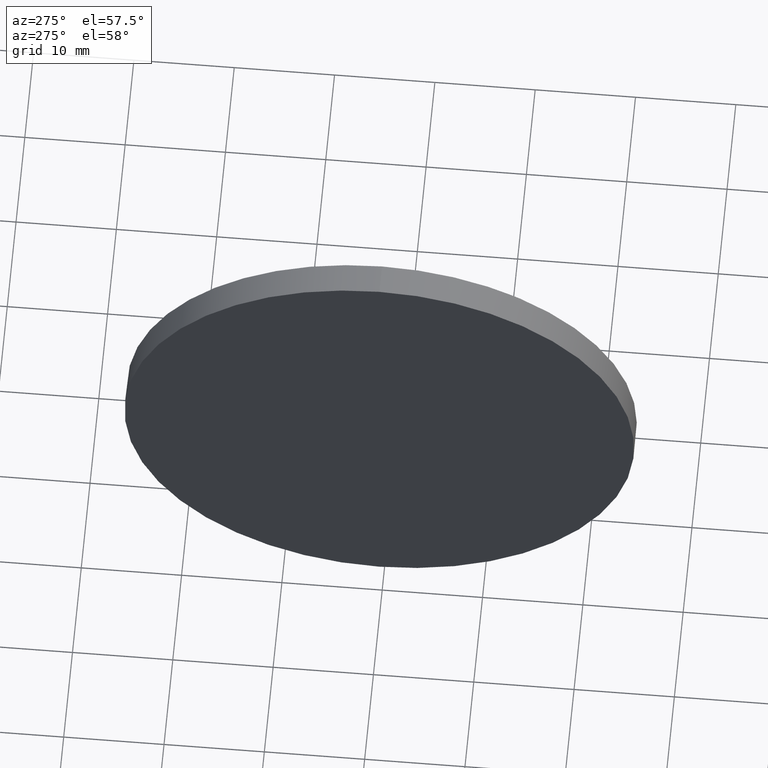
[diagram: clean part render]
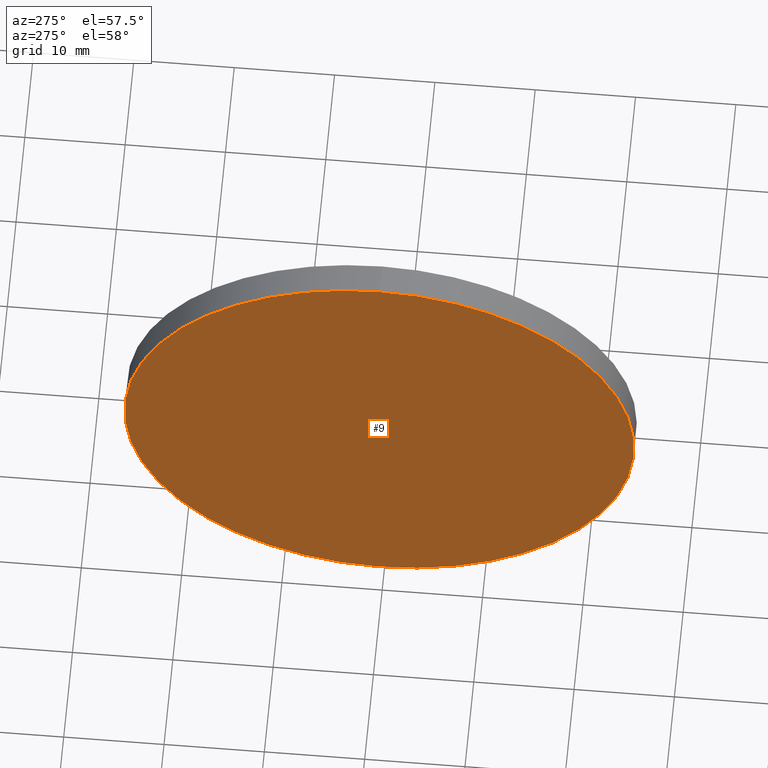
[diagram: same view with one face highlighted and labeled with its STEP entity id]
A machine part, auxiliary view. The second image highlights one B-rep face of the part: STEP entity #9.
In plain terms, the highlighted planar face has unit normal (1, 0, 0).
Its self-contained STEP definition (entity closure, byte-faithful):
#4 = PLANE ( 'NONE',  #135 ) ;
#6 = DIRECTION ( 'NONE',  ( 1.000000000000000000, 0.0000000000000000000, 0.0000000000000000000 ) ) ;
#9 = ADVANCED_FACE ( 'NONE', ( #51 ), #4, .F. ) ;
#36 = CARTESIAN_POINT ( 'NONE',  ( 232.0208200792423800, 130.4671098528243900, 0.0000000000000000000 ) ) ;
#38 = DIRECTION ( 'NONE',  ( -1.000000000000000000, -0.0000000000000000000, -0.0000000000000000000 ) ) ;
#48 = CIRCLE ( 'NONE', #160, 25.40000000000000600 ) ;
#49 = ORIENTED_EDGE ( 'NONE', *, *, #119, .T. ) ;
#51 = FACE_OUTER_BOUND ( 'NONE', #98, .T. ) ;
#57 = VERTEX_POINT ( 'NONE', #67 ) ;
#60 = CARTESIAN_POINT ( 'NONE',  ( 232.0208200792423800, 130.4671098528243900, 0.0000000000000000000 ) ) ;
#61 = ORIENTED_EDGE ( 'NONE', *, *, #157, .T. ) ;
#67 = CARTESIAN_POINT ( 'NONE',  ( 232.0208200792423800, 130.4671098528243900, 25.40000000000000600 ) ) ;
#85 = CARTESIAN_POINT ( 'NONE',  ( 232.0208200792423800, 130.4671098528243900, 0.0000000000000000000 ) ) ;
#98 = EDGE_LOOP ( 'NONE', ( #49, #61 ) ) ;
#105 = CIRCLE ( 'NONE', #146, 25.40000000000000600 ) ;
#107 = DIRECTION ( 'NONE',  ( 0.0000000000000000000, 0.0000000000000000000, -1.000000000000000000 ) ) ;
#113 = CARTESIAN_POINT ( 'NONE',  ( 232.0208200792423800, 130.4671098528243900, -25.40000000000000600 ) ) ;
#119 = EDGE_CURVE ( 'NONE', #57, #185, #48, .T. ) ;
#128 = DIRECTION ( 'NONE',  ( -1.000000000000000000, -0.0000000000000000000, -0.0000000000000000000 ) ) ;
#135 = AXIS2_PLACEMENT_3D ( 'NONE', #36, #6, #107 ) ;
#146 = AXIS2_PLACEMENT_3D ( 'NONE', #85, #128, #180 ) ;
#157 = EDGE_CURVE ( 'NONE', #185, #57, #105, .T. ) ;
#160 = AXIS2_PLACEMENT_3D ( 'NONE', #60, #38, #179 ) ;
#179 = DIRECTION ( 'NONE',  ( 0.0000000000000000000, 0.0000000000000000000, 1.000000000000000000 ) ) ;
#180 = DIRECTION ( 'NONE',  ( 0.0000000000000000000, 0.0000000000000000000, 1.000000000000000000 ) ) ;
#185 = VERTEX_POINT ( 'NONE', #113 ) ;